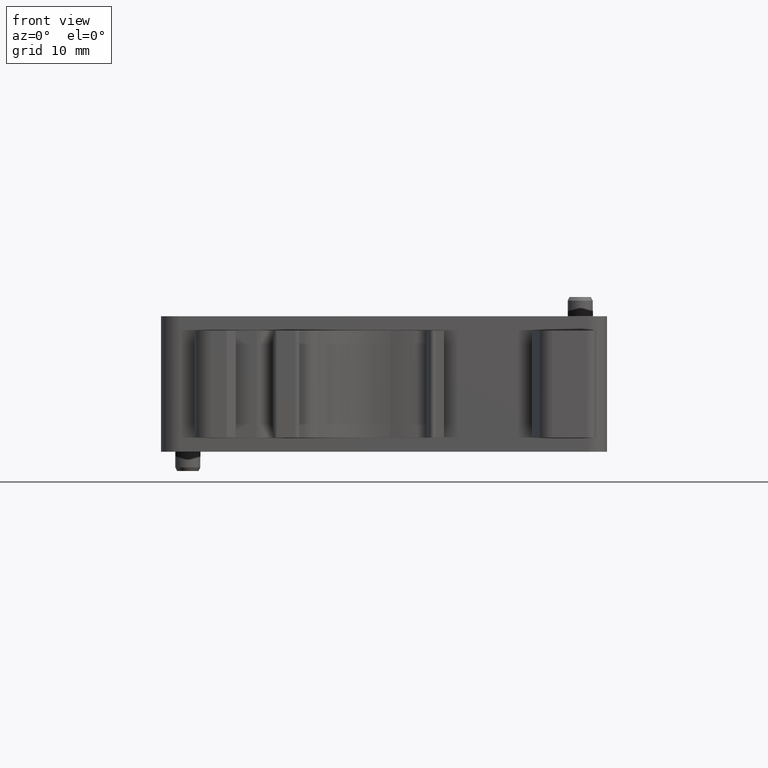
[diagram: clean part render]
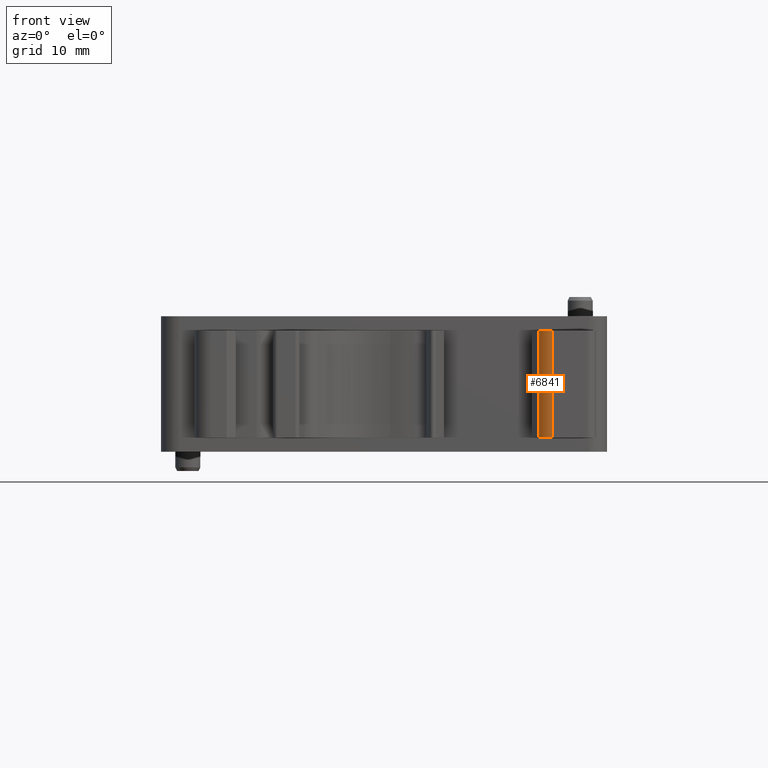
[diagram: same view with one face highlighted and labeled with its STEP entity id]
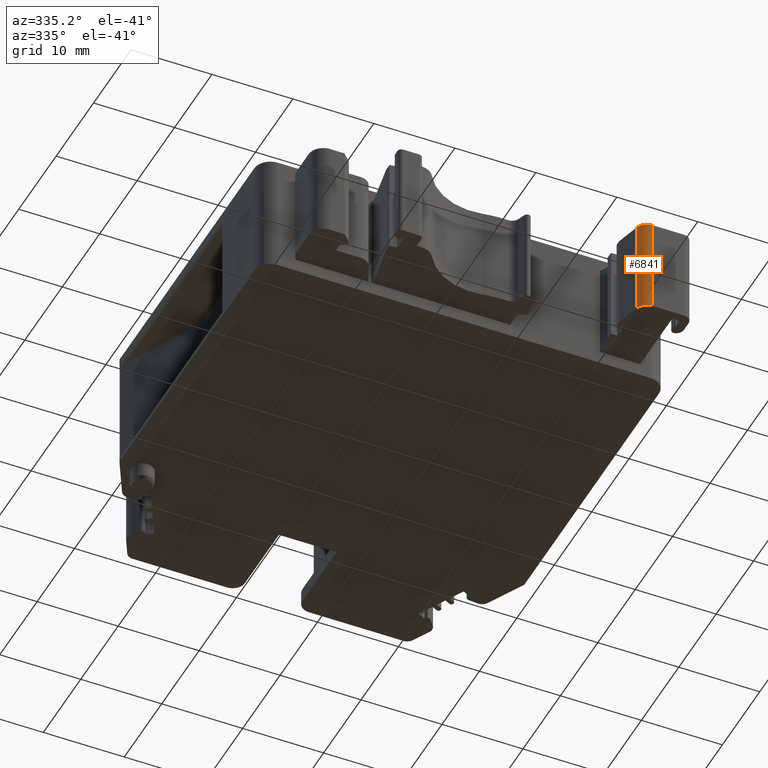
[diagram: same view with one face highlighted and labeled with its STEP entity id]
A machine part, front view. The second image highlights one B-rep face of the part: STEP entity #6841.
A second angle (auxiliary view) of the same face is appended — the face is thin or edge-on in the first view.
In plain terms, the highlighted cylindrical surface (edge-blend (fillet) strip) has radius 1.5 mm, axis along (0, 0, -1).
Its self-contained STEP definition (entity closure, byte-faithful):
#1963=CARTESIAN_POINT('',(4.383618528434E1,-8.099999138882E0,-1.6E0));
#1964=DIRECTION('',(0.E0,0.E0,-1.E0));
#1965=DIRECTION('',(-1.895656729127E-7,-1.E0,0.E0));
#1966=AXIS2_PLACEMENT_3D('',#1963,#1964,#1965);
#2054=CARTESIAN_POINT('',(4.383618528434E1,-8.099999138882E0,-1.36E1));
#2055=DIRECTION('',(0.E0,0.E0,1.E0));
#2056=DIRECTION('',(-9.659256350361E-1,-2.588197588672E-1,0.E0));
#2057=AXIS2_PLACEMENT_3D('',#2054,#2055,#2056);
#2148=DIRECTION('',(2.605323364454E-14,0.E0,-1.E0));
#2149=VECTOR('',#2148,1.2E1);
#2150=CARTESIAN_POINT('',(4.3836185E1,-9.600000000001E0,-1.6E0));
#2151=LINE('',#2150,#2149);
#2152=DIRECTION('',(3.298102531820E-13,-9.604169311691E-13,1.E0));
#2153=VECTOR('',#2152,1.2E1);
#2154=CARTESIAN_POINT('',(4.238729600001E1,-8.488229000037E0,-1.36E1));
#2155=LINE('',#2154,#2153);
#3824=CARTESIAN_POINT('',(4.3836185E1,-9.600000000001E0,-1.6E0));
#3825=VERTEX_POINT('',#3824);
#3826=CARTESIAN_POINT('',(4.238729600002E1,-8.488229000093E0,-1.6E0));
#3827=VERTEX_POINT('',#3826);
#3860=CARTESIAN_POINT('',(4.238729600001E1,-8.488229000037E0,-1.36E1));
#3861=VERTEX_POINT('',#3860);
#3862=CARTESIAN_POINT('',(4.383618499999E1,-9.600000000002E0,-1.36E1));
#3863=VERTEX_POINT('',#3862);
#6829=CARTESIAN_POINT('',(4.383618528434E1,-8.099999138882E0,-1.36E0));
#6830=DIRECTION('',(0.E0,0.E0,-1.E0));
#6831=DIRECTION('',(-1.E0,0.E0,0.E0));
#6832=AXIS2_PLACEMENT_3D('',#6829,#6830,#6831);
#6833=CYLINDRICAL_SURFACE('',#6832,1.500000861120E0);
#6834=ORIENTED_EDGE('',*,*,#6619,.F.);
#6836=ORIENTED_EDGE('',*,*,#6835,.T.);
#6837=ORIENTED_EDGE('',*,*,#6684,.F.);
#6838=ORIENTED_EDGE('',*,*,#6822,.T.);
#6839=EDGE_LOOP('',(#6834,#6836,#6837,#6838));
#6840=FACE_OUTER_BOUND('',#6839,.F.);
#6841=ADVANCED_FACE('',(#6840),#6833,.T.);
#1967=CIRCLE('',#1966,1.500000861120E0);
#2058=CIRCLE('',#2057,1.500000861120E0);
#6619=EDGE_CURVE('',#3825,#3827,#1967,.T.);
#6684=EDGE_CURVE('',#3861,#3863,#2058,.T.);
#6822=EDGE_CURVE('',#3861,#3827,#2155,.T.);
#6835=EDGE_CURVE('',#3825,#3863,#2151,.T.);